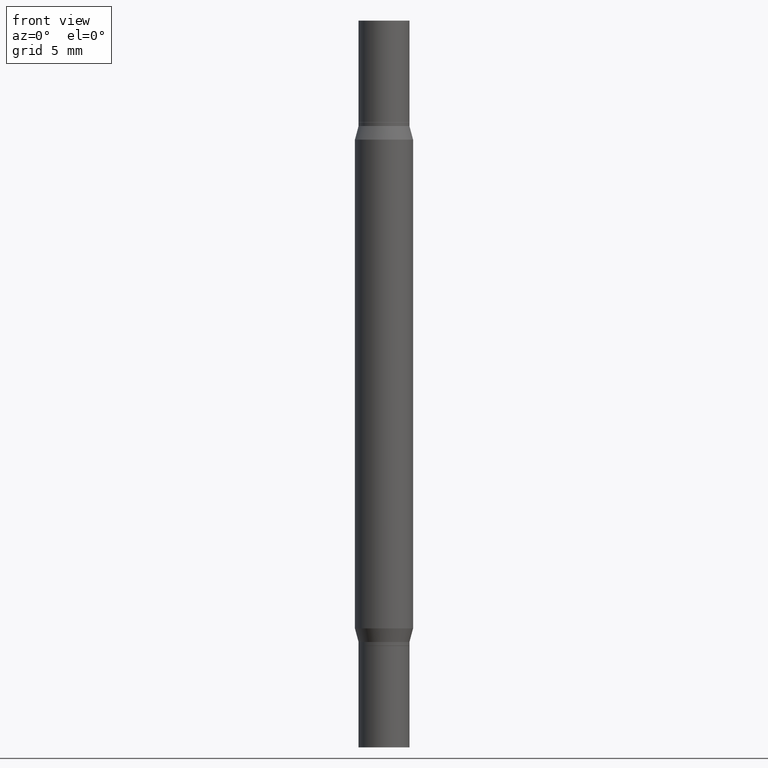
[diagram: clean part render]
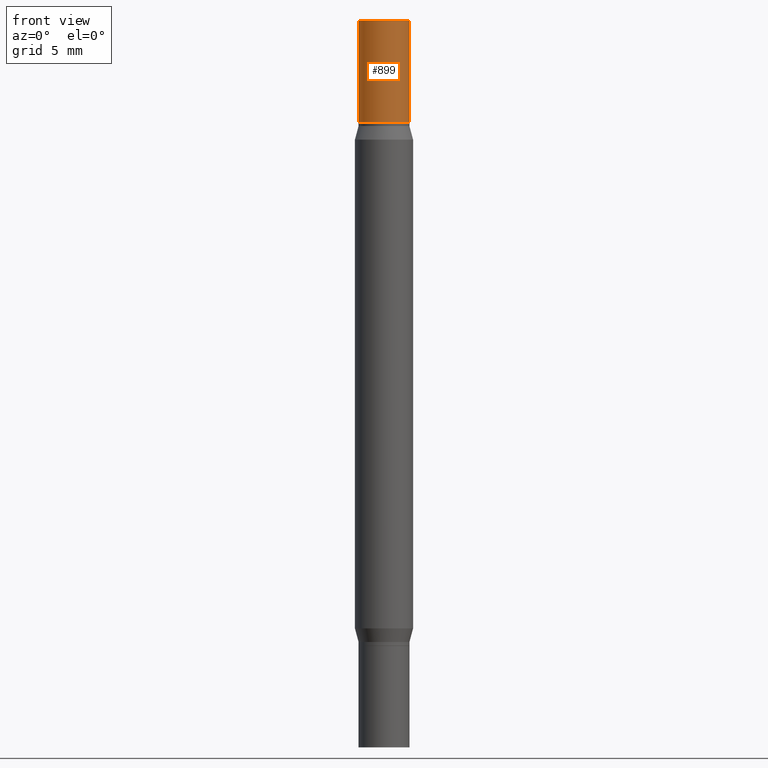
[diagram: same view with one face highlighted and labeled with its STEP entity id]
A machine part, front view. The second image highlights one B-rep face of the part: STEP entity #899.
In plain terms, the highlighted cylindrical surface (edge-blend (fillet) strip) has radius 1.7501 mm, axis along (-0, -0, -1).
Its self-contained STEP definition (entity closure, byte-faithful):
#50 = EDGE_CURVE ( 'NONE', #647, #98, #605, .T. ) ;
#74 = CIRCLE ( 'NONE', #202, 0.06890000000000007230 ) ;
#98 = VERTEX_POINT ( 'NONE', #183 ) ;
#102 = ORIENTED_EDGE ( 'NONE', *, *, #104, .T. ) ;
#104 = EDGE_CURVE ( 'NONE', #98, #150, #709, .T. ) ;
#150 = VERTEX_POINT ( 'NONE', #541 ) ;
#154 = VECTOR ( 'NONE', #362, 39.37007874015748143 ) ;
#181 = CARTESIAN_POINT ( 'NONE',  ( 0.000000000000000000, -6.873299672471851415E-15, -1.968499999999999694 ) ) ;
#183 = CARTESIAN_POINT ( 'NONE',  ( -0.06890000000000007230, -8.163773080062737161E-18, -0.2755999999999999006 ) ) ;
#186 = AXIS2_PLACEMENT_3D ( 'NONE', #613, #470, #483 ) ;
#202 = AXIS2_PLACEMENT_3D ( 'NONE', #407, #697, #777 ) ;
#211 = CARTESIAN_POINT ( 'NONE',  ( 0.06890000000000007230, -7.354425800964435942E-15, -1.968499999999999694 ) ) ;
#239 = VERTEX_POINT ( 'NONE', #723 ) ;
#284 = EDGE_LOOP ( 'NONE', ( #612, #931, #102, #704 ) ) ;
#362 = DIRECTION ( 'NONE',  ( -2.445468806185136877E-29, -3.491805094961123683E-15, -1.000000000000000000 ) ) ;
#364 = EDGE_CURVE ( 'NONE', #239, #150, #922, .T. ) ;
#405 = DIRECTION ( 'NONE',  ( -2.445468806185136597E-29, -3.491805094961124077E-15, -1.000000000000000000 ) ) ;
#407 = CARTESIAN_POINT ( 'NONE',  ( 4.813905344975441835E-29, 3.186569591213228268E-19, 2.731847993664263218E-16 ) ) ;
#460 = CARTESIAN_POINT ( 'NONE',  ( -0.06890000000000007230, -6.400611360425392691E-15, -1.968499999999999694 ) ) ;
#470 = DIRECTION ( 'NONE',  ( 2.445468806185136597E-29, 3.491805094961124077E-15, 1.000000000000000000 ) ) ;
#483 = DIRECTION ( 'NONE',  ( 1.000000000000000000, -6.982962677686265922E-15, 0.000000000000000000 ) ) ;
#541 = CARTESIAN_POINT ( 'NONE',  ( 0.06890000000000007230, -1.443148955704749777E-15, -0.2755999999999999006 ) ) ;
#550 = FACE_OUTER_BOUND ( 'NONE', #284, .T. ) ;
#605 = LINE ( 'NONE', #460, #827 ) ;
#612 = ORIENTED_EDGE ( 'NONE', *, *, #654, .F. ) ;
#613 = CARTESIAN_POINT ( 'NONE',  ( 4.139934141990817236E-29, -9.620228272121656440E-16, -0.2755999999999999006 ) ) ;
#647 = VERTEX_POINT ( 'NONE', #797 ) ;
#654 = EDGE_CURVE ( 'NONE', #647, #239, #74, .T. ) ;
#697 = DIRECTION ( 'NONE',  ( 2.445468806185136597E-29, 3.491805094961124077E-15, 1.000000000000000000 ) ) ;
#704 = ORIENTED_EDGE ( 'NONE', *, *, #364, .F. ) ;
#709 = CIRCLE ( 'NONE', #186, 0.06890000000000007230 ) ;
#719 = DIRECTION ( 'NONE',  ( 1.000000000000000000, -6.982962677686258822E-15, 0.000000000000000000 ) ) ;
#723 = CARTESIAN_POINT ( 'NONE',  ( 0.06890000000000007230, -4.808074715334629460E-16, 2.731847993664263218E-16 ) ) ;
#777 = DIRECTION ( 'NONE',  ( 1.000000000000000000, -6.982962677686265922E-15, 0.000000000000000000 ) ) ;
#797 = CARTESIAN_POINT ( 'NONE',  ( -0.06890000000000007230, -8.163773080062677072E-18, 2.731847993664279982E-16 ) ) ;
#827 = VECTOR ( 'NONE', #932, 39.37007874015748143 ) ;
#867 = CYLINDRICAL_SURFACE ( 'NONE', #926, 0.06890000000000007230 ) ;
#899 = ADVANCED_FACE ( 'NONE', ( #550 ), #867, .T. ) ;
#922 = LINE ( 'NONE', #211, #154 ) ;
#926 = AXIS2_PLACEMENT_3D ( 'NONE', #181, #405, #719 ) ;
#931 = ORIENTED_EDGE ( 'NONE', *, *, #50, .T. ) ;
#932 = DIRECTION ( 'NONE',  ( -2.445468806185136877E-29, -3.491805094961123683E-15, -1.000000000000000000 ) ) ;